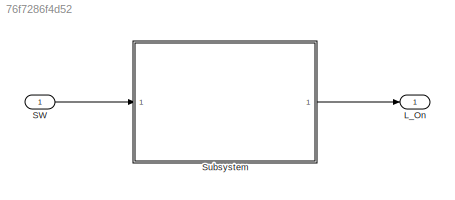
MODEL slx_76f7286f4d52
KIND model
CONFIG AbsTol = auto
CONFIG EnableMultiTasking = off
CONFIG FixedStep = auto
CONFIG MaxStep = auto
CONFIG MinStep = auto
CONFIG RelTol = 1e-3
CONFIG SampleTimeConstraint = Unconstrained
CONFIG SolverName = VariableStepAuto
CONFIG StartTime = 0.0
CONFIG StopTime = 10.0
BLOCK [Outport] L_On
BLOCK [Inport] SW
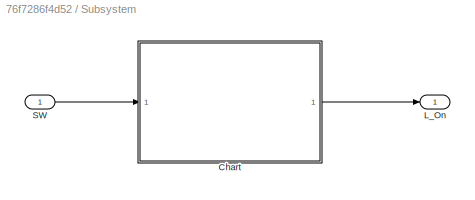
BLOCK [SubSystem] Subsystem
  Ports = [1, 1]
  RequestExecContextInheritance = off
  TreatAsAtomicUnit = on
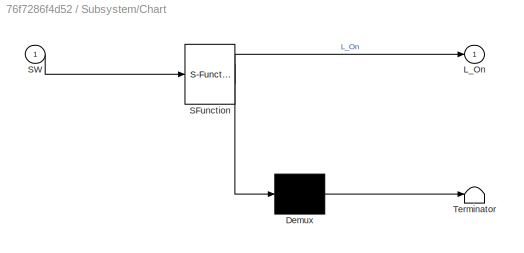
BLOCK [SubSystem] Subsystem/Chart
  ErrorFcn = Stateflow.Translate.translate
  PermitHierarchicalResolution = ExplicitOnly
  Ports = [1, 1]
  RequestExecContextInheritance = off
  SFBlockType = Chart
  TreatAsAtomicUnit = on
BLOCK [Demux] Subsystem/Chart/ Demux 
  Outputs = 1
  Ports = [1, 1]
BLOCK [S-Function] Subsystem/Chart/ SFunction 
  EnableBusSupport = off
  FunctionName = sf_sfun
  PortCounts = [1 2]
  Ports = [1, 2]
  SFcnIsStateOwnerBlock = off
  SFunctionDeploymentMode = off
  Tag = Stateflow S-Function 3
BLOCK [Terminator] Subsystem/Chart/ Terminator 
BLOCK [Outport] Subsystem/Chart/L_On
BLOCK [Inport] Subsystem/Chart/SW
BLOCK [Outport] Subsystem/L_On
BLOCK [Inport] Subsystem/SW
LINE SW:1 -> Subsystem:1
LINE Subsystem/Chart:1 -> Subsystem/L_On:1
LINE Subsystem/SW:1 -> Subsystem/Chart:1
LINE Subsystem:1 -> L_On:1
CHART Subsystem/Chart states=7 transitions=10
  STATE_LABEL 'Off\nen: L_On = 0;'
  STATE_LABEL 'Fault'
  STATE_LABEL 'Normal'
  STATE_LABEL 'Fault'
  STATE_LABEL 'Normal'
  STATE_LABEL 'Doubling'
  STATE_LABEL 'Off'
  STATE_LABEL 'On'
  STATE_LABEL '[SW<0]'
  STATE_LABEL '[SW>0]'
  STATE_LABEL 'Off'
  STATE_LABEL 'On'
  STATE_LABEL 'On\nen:\nL_On = 1;'
CHART  states=0 transitions=0
